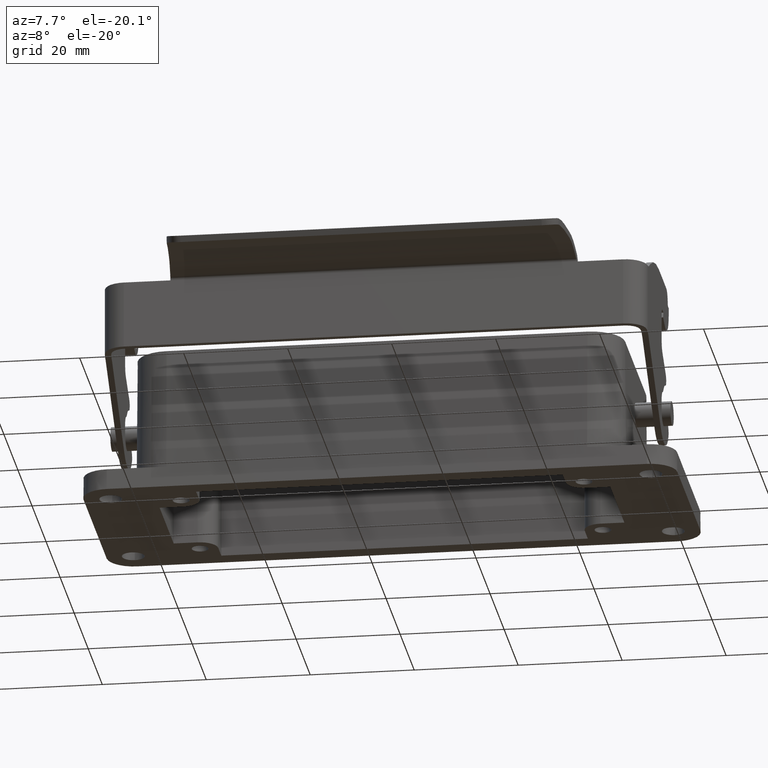
[diagram: clean part render]
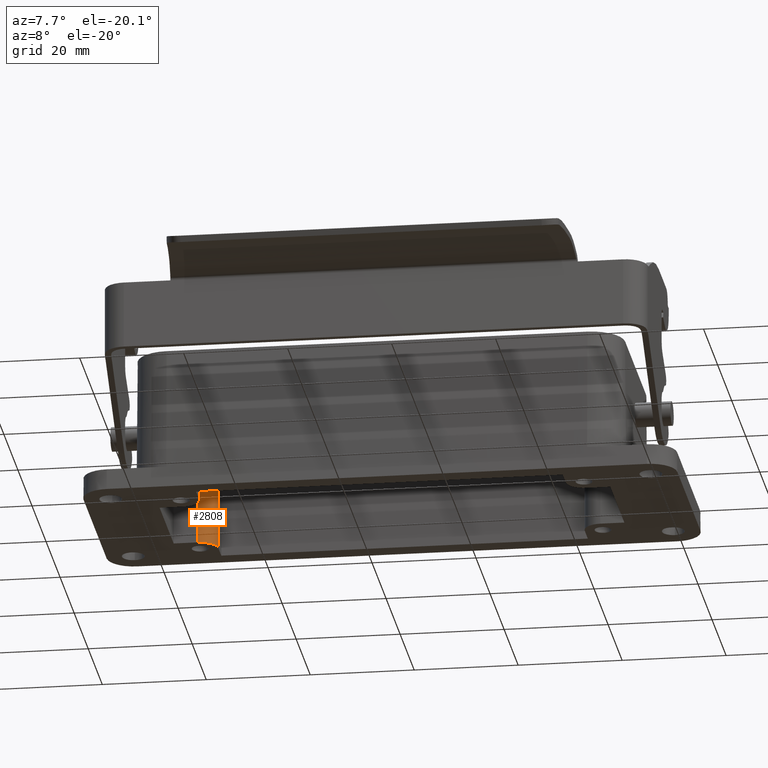
[diagram: same view with one face highlighted and labeled with its STEP entity id]
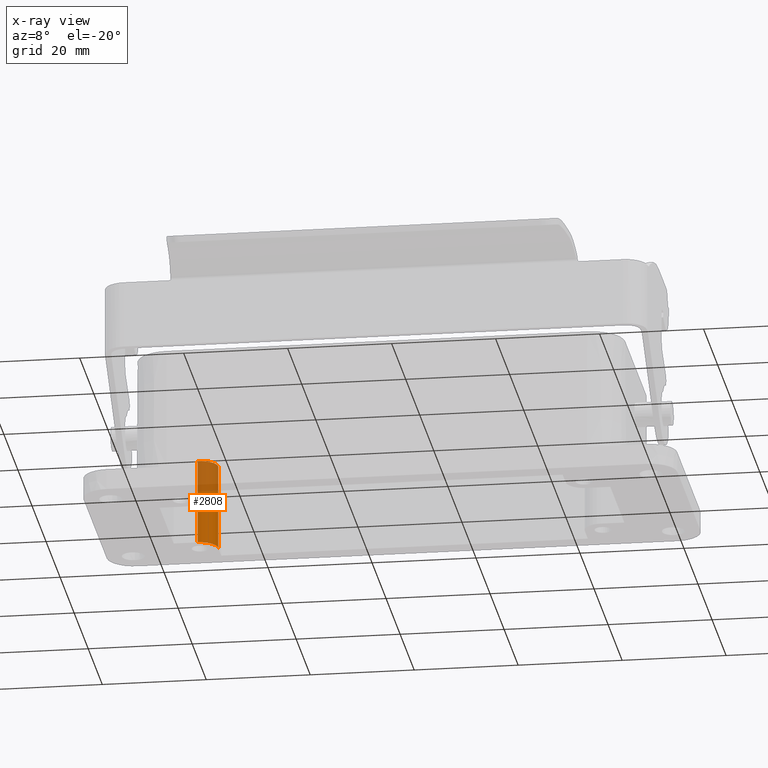
[diagram: x-ray of the same camera — body ghosted, the highlighted face saturated]
A machine part, auxiliary view. The second image highlights one B-rep face of the part: STEP entity #2808.
The next image is the same camera in x-ray: the body ghosted, the highlighted face saturated — about 37% of this face is hidden behind the body in this view.
In plain terms, the highlighted cylindrical surface (edge-blend (fillet) strip) has radius 3.5 mm, axis along (0, 0, 1).
Its self-contained STEP definition (entity closure, byte-faithful):
#363 = CARTESIAN_POINT ( 'NONE',  ( -2.055118110236220819, 0.3937007874002086960, -0.6377952755905511584 ) ) ;
#815 = ORIENTED_EDGE ( 'NONE', *, *, #3188, .T. ) ;
#855 = CARTESIAN_POINT ( 'NONE',  ( -2.055118110236220819, 0.3937007874002086960, -0.6377952755905511584 ) ) ;
#909 = VECTOR ( 'NONE', #6897, 39.37007874015748143 ) ;
#1067 = VERTEX_POINT ( 'NONE', #5142 ) ;
#1388 = DIRECTION ( 'NONE',  ( 1.000000000000000000, 0.000000000000000000, 0.000000000000000000 ) ) ;
#1706 = CARTESIAN_POINT ( 'NONE',  ( -1.917322834645669438, 0.5314960629907599099, -0.6377952755905511584 ) ) ;
#1733 = CIRCLE ( 'NONE', #2880, 0.1377952755905512972 ) ;
#1895 = FACE_OUTER_BOUND ( 'NONE', #3358, .T. ) ;
#1916 = CIRCLE ( 'NONE', #3412, 0.1377952755905512972 ) ;
#2250 = EDGE_CURVE ( 'NONE', #6043, #1067, #5143, .T. ) ;
#2401 = CARTESIAN_POINT ( 'NONE',  ( -1.917322834645669660, 0.5314960629907599099, -1.287401574803149984 ) ) ;
#2542 = LINE ( 'NONE', #855, #909 ) ;
#2702 = DIRECTION ( 'NONE',  ( -0.000000000000000000, -0.000000000000000000, -1.000000000000000000 ) ) ;
#2808 = ADVANCED_FACE ( 'NONE', ( #1895 ), #5875, .T. ) ;
#2880 = AXIS2_PLACEMENT_3D ( 'NONE', #5809, #4562, #1388 ) ;
#3136 = CARTESIAN_POINT ( 'NONE',  ( -2.055118110236220819, 0.5314960629907599099, -0.6377952755905511584 ) ) ;
#3188 = EDGE_CURVE ( 'NONE', #1067, #6739, #1916, .T. ) ;
#3234 = VERTEX_POINT ( 'NONE', #7082 ) ;
#3358 = EDGE_LOOP ( 'NONE', ( #815, #5619, #3462, #5341 ) ) ;
#3412 = AXIS2_PLACEMENT_3D ( 'NONE', #5435, #2702, #4965 ) ;
#3462 = ORIENTED_EDGE ( 'NONE', *, *, #6316, .F. ) ;
#4562 = DIRECTION ( 'NONE',  ( -0.000000000000000000, -0.000000000000000000, -1.000000000000000000 ) ) ;
#4631 = DIRECTION ( 'NONE',  ( 1.000000000000000000, 0.000000000000000000, 0.000000000000000000 ) ) ;
#4965 = DIRECTION ( 'NONE',  ( 1.000000000000000000, 0.000000000000000000, 0.000000000000000000 ) ) ;
#5142 = CARTESIAN_POINT ( 'NONE',  ( -1.917322834645669660, 0.5314960629907599099, -0.6377952755905511584 ) ) ;
#5143 = LINE ( 'NONE', #1706, #5774 ) ;
#5209 = AXIS2_PLACEMENT_3D ( 'NONE', #3136, #5340, #4631 ) ;
#5340 = DIRECTION ( 'NONE',  ( 0.000000000000000000, 0.000000000000000000, 1.000000000000000000 ) ) ;
#5341 = ORIENTED_EDGE ( 'NONE', *, *, #2250, .T. ) ;
#5435 = CARTESIAN_POINT ( 'NONE',  ( -2.055118110236220819, 0.5314960629907599099, -0.6377952755905511584 ) ) ;
#5619 = ORIENTED_EDGE ( 'NONE', *, *, #6003, .T. ) ;
#5774 = VECTOR ( 'NONE', #6593, 39.37007874015748143 ) ;
#5809 = CARTESIAN_POINT ( 'NONE',  ( -2.055118110236220819, 0.5314960629907599099, -1.287401574803149984 ) ) ;
#5875 = CYLINDRICAL_SURFACE ( 'NONE', #5209, 0.1377952755905512972 ) ;
#6003 = EDGE_CURVE ( 'NONE', #6739, #3234, #2542, .T. ) ;
#6043 = VERTEX_POINT ( 'NONE', #2401 ) ;
#6316 = EDGE_CURVE ( 'NONE', #6043, #3234, #1733, .T. ) ;
#6593 = DIRECTION ( 'NONE',  ( 0.000000000000000000, 0.000000000000000000, 1.000000000000000000 ) ) ;
#6739 = VERTEX_POINT ( 'NONE', #363 ) ;
#6897 = DIRECTION ( 'NONE',  ( -0.000000000000000000, 0.000000000000000000, -1.000000000000000000 ) ) ;
#7082 = CARTESIAN_POINT ( 'NONE',  ( -2.055118110236220819, 0.3937007874002086960, -1.287401574803149984 ) ) ;